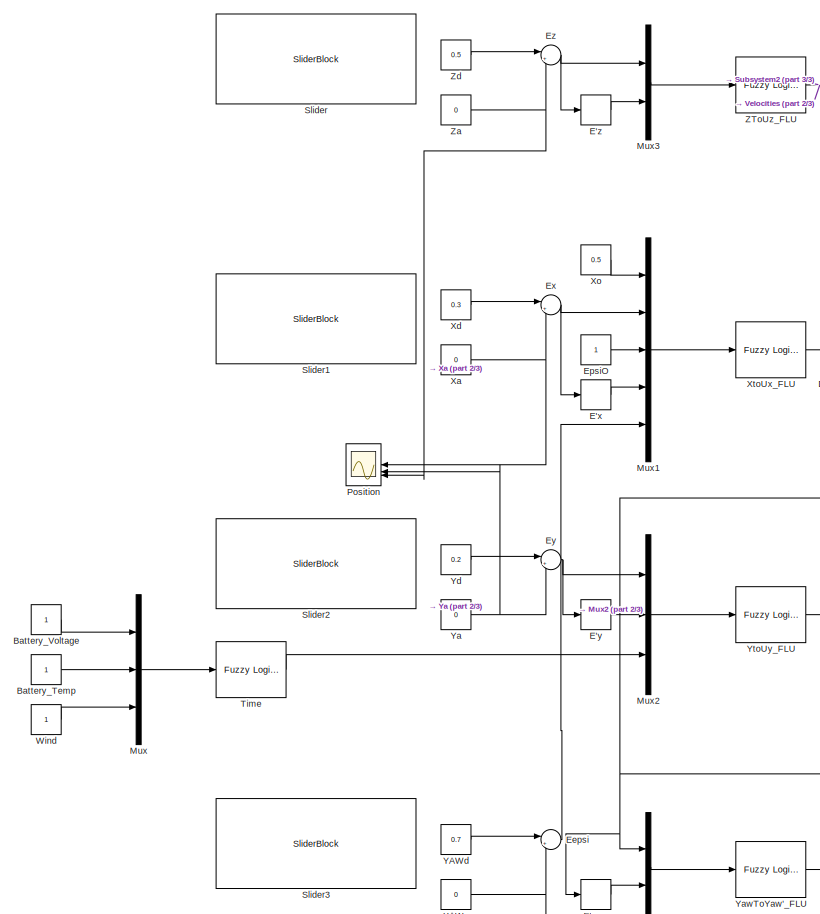
[diagram: root canvas - part 1/3, left side, full height]
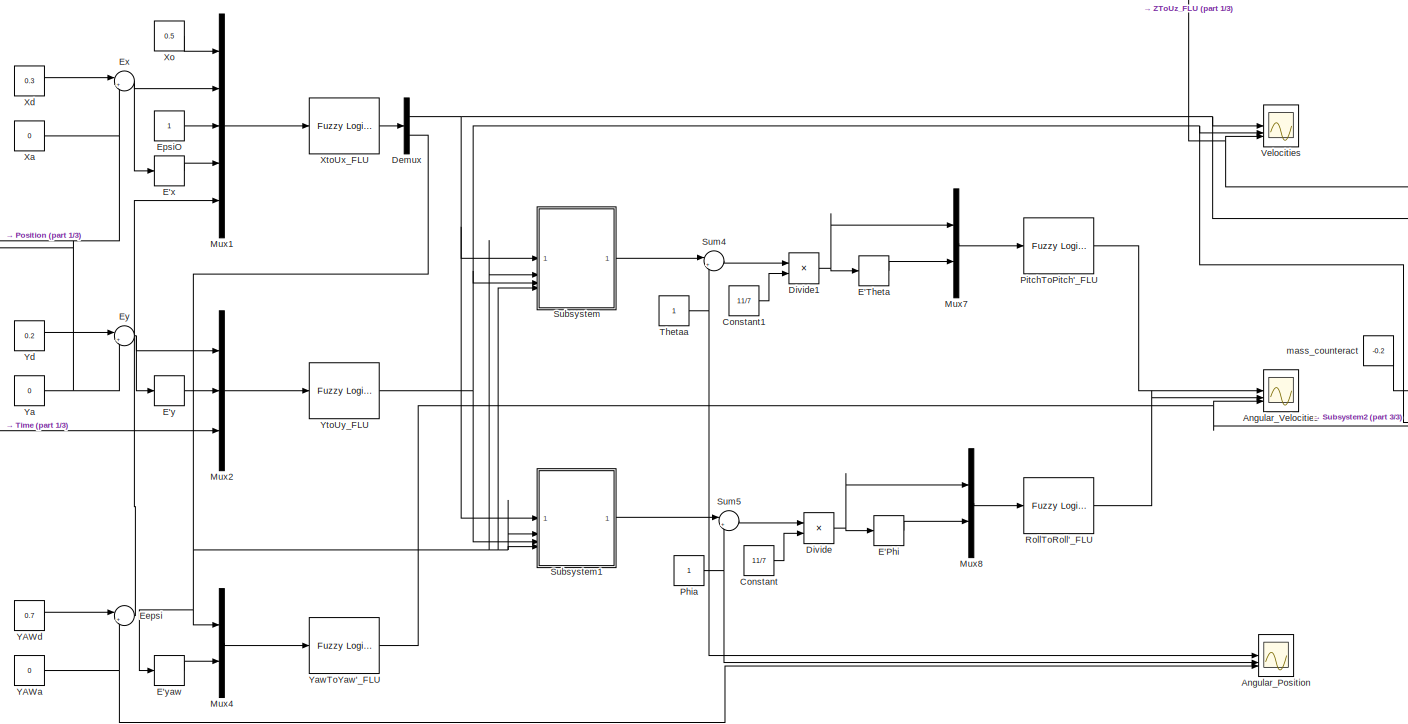
[diagram: root canvas - part 2/3, center side, full height]
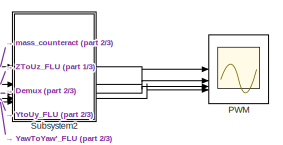
[diagram: root canvas - part 3/3, middle right region]
MODEL slx_06635eb8a8a5
KIND model
CONFIG AbsTol = auto
CONFIG EnableMultiTasking = off
CONFIG FixedStep = auto
CONFIG MaxStep = auto
CONFIG MinStep = auto
CONFIG RelTol = 1e-3
CONFIG SampleTimeConstraint = Unconstrained
CONFIG SolverName = VariableStepAuto
CONFIG StartTime = 0.0
CONFIG StopTime = 10.0
BLOCK [Scope] Angular_Position
  Floating = off
  NumInputPorts = 3
  ScopeSpecificationString = Simulink.scopes.TimeScopeBlockCfg('CurrentConfiguration', extmgr.ConfigurationSet(extmgr.Configuration('Core','General UI',true),extmgr.Configuration('Core','Source UI',true),extmgr.Configuration('Sources','WiredSimulink',true,'DataLoggingVariableName','ScopeData1'),extmgr.Configuration('Visuals','Time Domain',true,'SerializedDisplays',{struct('MinYLimReal','0.875','MaxYLimReal','2.125','YLabelRea...<+1468ch>
BLOCK [Scope] Angular_Velocities
  Floating = off
  NumInputPorts = 3
  ScopeSpecificationString = Simulink.scopes.TimeScopeBlockCfg('CurrentConfiguration', extmgr.ConfigurationSet(extmgr.Configuration('Core','General UI',true),extmgr.Configuration('Core','Source UI',true),extmgr.Configuration('Sources','WiredSimulink',true,'DataLoggingVariableName','ScopeData3'),extmgr.Configuration('Visuals','Time Domain',true,'SerializedDisplays',{struct('MinYLimReal','-0.73756','MaxYLimReal','0.08195','YLab...<+1446ch>
BLOCK [Constant] Battery_Temp
BLOCK [Constant] Battery_Voltage
BLOCK [Constant] Constant
  Value = 11/7
BLOCK [Constant] Constant1
  Value = 11/7
BLOCK [Demux] Demux
  Outputs = 2
BLOCK [Product] Divide
  Inputs = */
BLOCK [Product] Divide1
  Inputs = */
BLOCK [Derivative] E'Phi
BLOCK [Derivative] E'Theta
BLOCK [Derivative] E'x
BLOCK [Derivative] E'y
BLOCK [Derivative] E'yaw
BLOCK [Derivative] E'z
BLOCK [Sum] Eepsi
  Inputs = |+-
  NameLocation = top
BLOCK [Constant] EpsiO
BLOCK [Sum] Ex
  Inputs = |+-
  NameLocation = top
BLOCK [Sum] Ey
  Inputs = |+-
  NameLocation = top
BLOCK [Sum] Ez
  Inputs = |+-
  NameLocation = top
BLOCK [Mux] Mux
  DisplayOption = bar
  Inputs = 3
BLOCK [Mux] Mux1
  DisplayOption = bar
  Inputs = 5
BLOCK [Mux] Mux2
  DisplayOption = bar
  Inputs = 3
BLOCK [Mux] Mux3
  DisplayOption = bar
  Inputs = 2
  NameLocation = right
BLOCK [Mux] Mux4
  DisplayOption = bar
  Inputs = 2
BLOCK [Mux] Mux7
  DisplayOption = bar
  Inputs = 2
BLOCK [Mux] Mux8
  DisplayOption = bar
  Inputs = 2
BLOCK [Scope] PWM
  Floating = off
  NumInputPorts = 4
  ScopeSpecificationString = Simulink.scopes.TimeScopeBlockCfg('CurrentConfiguration', extmgr.ConfigurationSet(extmgr.Configuration('Core','General UI',true),extmgr.Configuration('Core','Source UI',true),extmgr.Configuration('Sources','WiredSimulink',true,'DataLoggingVariableName','ScopeData1'),extmgr.Configuration('Visuals','Time Domain',true,'SerializedDisplays',{struct('MinYLimReal','-0.30248','MaxYLimReal','0.85248','YLab...<+1505ch>
BLOCK [Constant] Phia
BLOCK [Reference] PitchToPitch'_FLU  REF=fuzblock/Fuzzy Logic   (lib defined in mdl_858b3b3e7478)
Controller
  SourceBlock = fuzblock/Fuzzy Logic \nController
  SourceType = Fuzzy Inference System
BLOCK [Scope] Position
  Floating = off
  NumInputPorts = 3
  ScopeSpecificationString = Simulink.scopes.TimeScopeBlockCfg('CurrentConfiguration', extmgr.ConfigurationSet(extmgr.Configuration('Core','General UI',true),extmgr.Configuration('Core','Source UI',true),extmgr.Configuration('Sources','WiredSimulink',true),extmgr.Configuration('Visuals','Time Domain',true,'SerializedDisplays',{struct('MinYLimReal','-0.3125','MaxYLimReal','0.8125','YLabelReal','','MinYLimMag','0.00000','MaxYLi...<+1385ch>
BLOCK [Reference] RollToRoll'_FLU  REF=fuzblock/Fuzzy Logic   (lib defined in mdl_858b3b3e7478)
Controller
  SourceBlock = fuzblock/Fuzzy Logic \nController
  SourceType = Fuzzy Inference System
BLOCK [SliderBlock] Slider
  ScaleMax = 1
  ScaleMin = -1
BLOCK [SliderBlock] Slider1
  ScaleMax = 1
  ScaleMin = -1
BLOCK [SliderBlock] Slider2
  ScaleMax = 1
  ScaleMin = -1
BLOCK [SliderBlock] Slider3
  ScaleMax = 3.2
  ScaleMin = -3.2
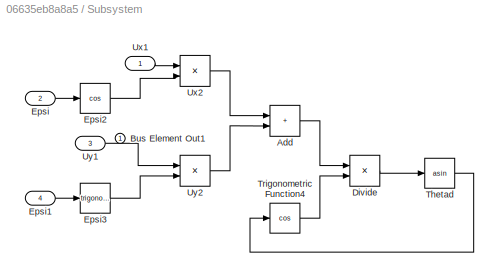
BLOCK [SubSystem] Subsystem
BLOCK [Sum] Subsystem/Add
  IconShape = rectangular
BLOCK [Outport] Subsystem/Bus Element Out1
BLOCK [Product] Subsystem/Divide
  Inputs = */
BLOCK [Inport] Subsystem/Epsi
  Port = 2
BLOCK [Inport] Subsystem/Epsi1
  Port = 4
BLOCK [Trigonometry] Subsystem/Epsi2
  Operator = cos
BLOCK [Trigonometry] Subsystem/Epsi3
BLOCK [Trigonometry] Subsystem/Thetad
  Operator = asin
BLOCK [Trigonometry] Subsystem/Trigonometric Function4
  Operator = cos
BLOCK [Inport] Subsystem/Ux1
BLOCK [Product] Subsystem/Ux2
BLOCK [Inport] Subsystem/Uy1
  Port = 3
BLOCK [Product] Subsystem/Uy2
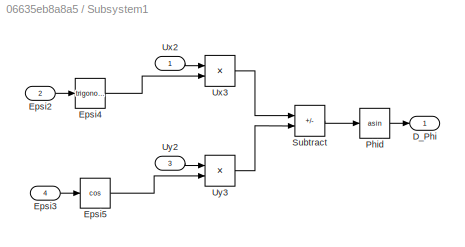
BLOCK [SubSystem] Subsystem1
BLOCK [Outport] Subsystem1/D_Phi
BLOCK [Inport] Subsystem1/Epsi2
  Port = 2
BLOCK [Inport] Subsystem1/Epsi3
  Port = 4
BLOCK [Trigonometry] Subsystem1/Epsi4
BLOCK [Trigonometry] Subsystem1/Epsi5
  Operator = cos
BLOCK [Trigonometry] Subsystem1/Phid
  Operator = asin
BLOCK [Sum] Subsystem1/Subtract
  IconShape = rectangular
  Inputs = +-
BLOCK [Inport] Subsystem1/Ux2
BLOCK [Product] Subsystem1/Ux3
BLOCK [Inport] Subsystem1/Uy2
  Port = 3
BLOCK [Product] Subsystem1/Uy3
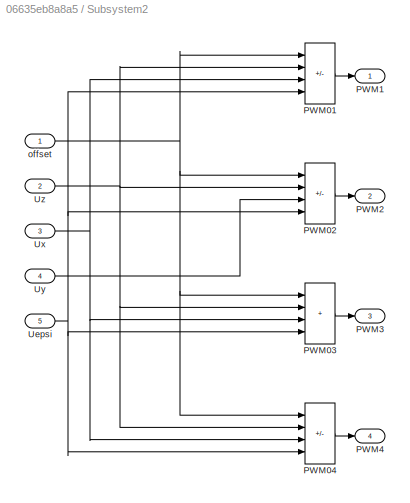
BLOCK [SubSystem] Subsystem2
BLOCK [Sum] Subsystem2/PWM01
  IconShape = rectangular
  Inputs = ++-+
BLOCK [Sum] Subsystem2/PWM02
  IconShape = rectangular
  Inputs = ++--
BLOCK [Sum] Subsystem2/PWM03
  IconShape = rectangular
  Inputs = ++++
BLOCK [Sum] Subsystem2/PWM04
  IconShape = rectangular
  Inputs = +++-
BLOCK [Outport] Subsystem2/PWM1
BLOCK [Outport] Subsystem2/PWM2
  Port = 2
BLOCK [Outport] Subsystem2/PWM3
  Port = 3
BLOCK [Outport] Subsystem2/PWM4
  Port = 4
BLOCK [Inport] Subsystem2/Uepsi
  Port = 5
BLOCK [Inport] Subsystem2/Ux
  Port = 3
BLOCK [Inport] Subsystem2/Uy
  Port = 4
BLOCK [Inport] Subsystem2/Uz
  Port = 2
BLOCK [Inport] Subsystem2/offset
BLOCK [Sum] Sum4
  Inputs = |+-
BLOCK [Sum] Sum5
  Inputs = |+-
BLOCK [Constant] Thetaa
BLOCK [Reference] Time  REF=fuzblock/Fuzzy Logic   (lib defined in mdl_858b3b3e7478)
Controller
  SourceBlock = fuzblock/Fuzzy Logic \nController
  SourceType = Fuzzy Inference System
BLOCK [Scope] Velocities
  Floating = off
  NumInputPorts = 3
  ScopeSpecificationString = Simulink.scopes.TimeScopeBlockCfg('CurrentConfiguration', extmgr.ConfigurationSet(extmgr.Configuration('Core','General UI',true),extmgr.Configuration('Core','Source UI',true),extmgr.Configuration('Sources','WiredSimulink',true,'DataLoggingVariableName','ScopeData2'),extmgr.Configuration('Visuals','Time Domain',true,'SerializedDisplays',{struct('MinYLimReal','0.175','MaxYLimReal','0.425','YLabelRea...<+1405ch>
BLOCK [Constant] Wind
BLOCK [Constant] Xa
  Value = 0
BLOCK [Constant] Xd
  Value = 0.3
BLOCK [Constant] Xo
  Value = 0.5
BLOCK [Reference] XtoUx_FLU  REF=fuzblock/Fuzzy Logic   (lib defined in mdl_858b3b3e7478)
Controller
  SourceBlock = fuzblock/Fuzzy Logic \nController
  SourceType = Fuzzy Inference System
BLOCK [Constant] YAWa
  Value = 0
BLOCK [Constant] YAWd
  Value = 0.7
BLOCK [Constant] Ya
  Value = 0
BLOCK [Reference] YawToYaw'_FLU  REF=fuzblock/Fuzzy Logic   (lib defined in mdl_858b3b3e7478)
Controller
  SourceBlock = fuzblock/Fuzzy Logic \nController
  SourceType = Fuzzy Inference System
BLOCK [Constant] Yd
  Value = 0.2
BLOCK [Reference] YtoUy_FLU  REF=fuzblock/Fuzzy Logic   (lib defined in mdl_858b3b3e7478)
Controller
  SourceBlock = fuzblock/Fuzzy Logic \nController
  SourceType = Fuzzy Inference System
BLOCK [Reference] ZToUz_FLU  REF=fuzblock/Fuzzy Logic   (lib defined in mdl_858b3b3e7478)
Controller
  SourceBlock = fuzblock/Fuzzy Logic \nController
  SourceType = Fuzzy Inference System
BLOCK [Constant] Za
  Value = 0
BLOCK [Constant] Zd
  Value = 0.5
BLOCK [Constant] mass_counteract
  Value = -0.2
LINE Battery_Temp:1 -> Mux:2
LINE Battery_Voltage:1 -> Mux:1
LINE Constant1:1 -> Divide1:2
LINE Constant:1 -> Divide:2
NET Demux:1 -> Subsystem1:1, Subsystem2:3, Subsystem:1, Velocities:1
NET Demux:2 -> E'yaw:1, Mux4:1, Subsystem1:2, Subsystem1:4, Subsystem:2, Subsystem:4
NET Divide1:1 -> E'Theta:1, Mux7:1
NET Divide:1 -> E'Phi:1, Mux8:1
LINE E'Phi:1 -> Mux8:2
LINE E'Theta:1 -> Mux7:2
LINE E'x:1 -> Mux1:4
LINE E'y:1 -> Mux2:2
LINE E'yaw:1 -> Mux4:2
LINE E'z:1 -> Mux3:2
LINE Eepsi:1 -> Mux1:5
LINE EpsiO:1 -> Mux1:3
NET Ex:1 -> E'x:1, Mux1:2
NET Ey:1 -> E'y:1, Mux2:1
NET Ez:1 -> E'z:1, Mux3:1
LINE Mux1:1 -> XtoUx_FLU:1
LINE Mux2:1 -> YtoUy_FLU:1
LINE Mux3:1 -> ZToUz_FLU:1
LINE Mux4:1 -> YawToYaw'_FLU:1
LINE Mux7:1 -> PitchToPitch'_FLU:1
LINE Mux8:1 -> RollToRoll'_FLU:1
LINE Mux:1 -> Time:1
NET Phia:1 -> Angular_Position:2, Sum5:2
LINE PitchToPitch'_FLU:1 -> Angular_Velocities:1
LINE RollToRoll'_FLU:1 -> Angular_Velocities:2
LINE Subsystem/Add:1 -> Subsystem/Divide:1
LINE Subsystem/Divide:1 -> Subsystem/Thetad:1
LINE Subsystem/Epsi1:1 -> Subsystem/Epsi3:1
LINE Subsystem/Epsi2:1 -> Subsystem/Ux2:2
LINE Subsystem/Epsi3:1 -> Subsystem/Uy2:2
LINE Subsystem/Epsi:1 -> Subsystem/Epsi2:1
LINE Subsystem/Thetad:1 -> Subsystem/Trigonometric Function4:1
LINE Subsystem/Trigonometric Function4:1 -> Subsystem/Divide:2
LINE Subsystem/Ux1:1 -> Subsystem/Ux2:1
LINE Subsystem/Ux2:1 -> Subsystem/Add:1
LINE Subsystem/Uy1:1 -> Subsystem/Uy2:1
LINE Subsystem/Uy2:1 -> Subsystem/Add:2
LINE Subsystem1/Epsi2:1 -> Subsystem1/Epsi4:1
LINE Subsystem1/Epsi3:1 -> Subsystem1/Epsi5:1
LINE Subsystem1/Epsi4:1 -> Subsystem1/Ux3:2
LINE Subsystem1/Epsi5:1 -> Subsystem1/Uy3:2
LINE Subsystem1/Phid:1 -> Subsystem1/D_Phi:1
LINE Subsystem1/Subtract:1 -> Subsystem1/Phid:1
LINE Subsystem1/Ux2:1 -> Subsystem1/Ux3:1
LINE Subsystem1/Ux3:1 -> Subsystem1/Subtract:1
LINE Subsystem1/Uy2:1 -> Subsystem1/Uy3:1
LINE Subsystem1/Uy3:1 -> Subsystem1/Subtract:2
LINE Subsystem1:1 -> Sum5:1
LINE Subsystem2/PWM01:1 -> Subsystem2/PWM1:1
LINE Subsystem2/PWM02:1 -> Subsystem2/PWM2:1
LINE Subsystem2/PWM03:1 -> Subsystem2/PWM3:1
LINE Subsystem2/PWM04:1 -> Subsystem2/PWM4:1
NET Subsystem2/Uepsi:1 -> Subsystem2/PWM01:4, Subsystem2/PWM02:4, Subsystem2/PWM03:4, Subsystem2/PWM04:4
NET Subsystem2/Ux:1 -> Subsystem2/PWM01:3, Subsystem2/PWM03:3, Subsystem2/PWM04:3
LINE Subsystem2/Uy:1 -> Subsystem2/PWM02:3
NET Subsystem2/Uz:1 -> Subsystem2/PWM01:2, Subsystem2/PWM02:2, Subsystem2/PWM03:2, Subsystem2/PWM04:2
NET Subsystem2/offset:1 -> Subsystem2/PWM01:1, Subsystem2/PWM02:1, Subsystem2/PWM03:1, Subsystem2/PWM04:1
LINE Subsystem2:1 -> PWM:1
LINE Subsystem2:2 -> PWM:2
LINE Subsystem2:3 -> PWM:3
LINE Subsystem2:4 -> PWM:4
LINE Subsystem:1 -> Sum4:1
LINE Sum4:1 -> Divide1:1
LINE Sum5:1 -> Divide:1
NET Thetaa:1 -> Angular_Position:1, Sum4:2
LINE Time:1 -> Mux2:3
LINE Wind:1 -> Mux:3
NET Xa:1 -> Ex:2, Position:1
LINE Xd:1 -> Ex:1
LINE Xo:1 -> Mux1:1
LINE XtoUx_FLU:1 -> Demux:1
NET YAWa:1 -> Angular_Position:3, Eepsi:2
LINE YAWd:1 -> Eepsi:1
NET Ya:1 -> Ey:2, Position:2
NET YawToYaw'_FLU:1 -> Angular_Velocities:3, Subsystem2:5
LINE Yd:1 -> Ey:1
NET YtoUy_FLU:1 -> Subsystem1:3, Subsystem2:4, Subsystem:3, Velocities:2
NET ZToUz_FLU:1 -> Subsystem2:2, Velocities:3
NET Za:1 -> Ez:2, Position:3
LINE Zd:1 -> Ez:1
LINE mass_counteract:1 -> Subsystem2:1
note: NET lines group one-source signal fan-out (src -> all destinations, sorted); 1:1 wires keep LINE
